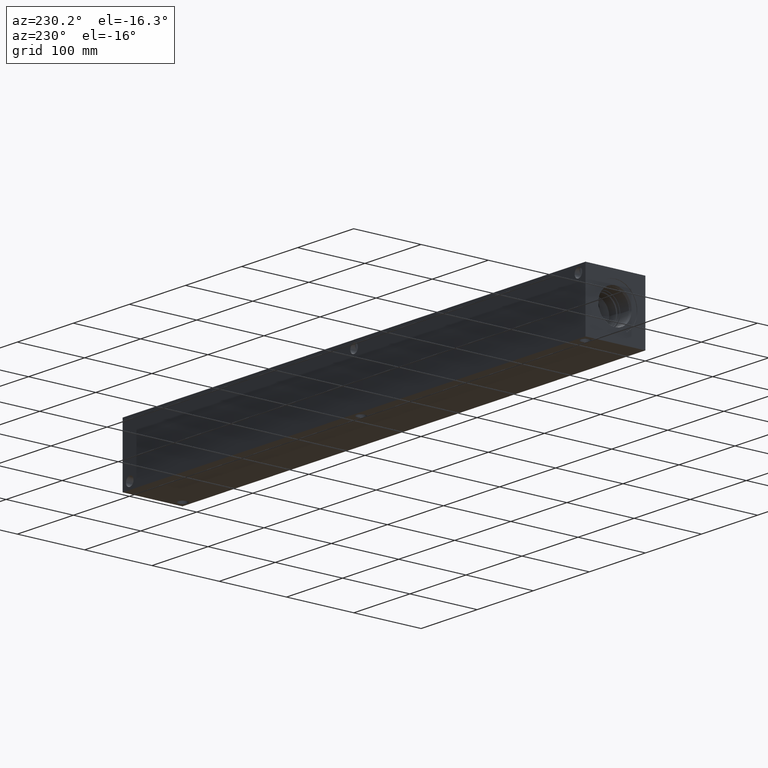
[diagram: clean part render]
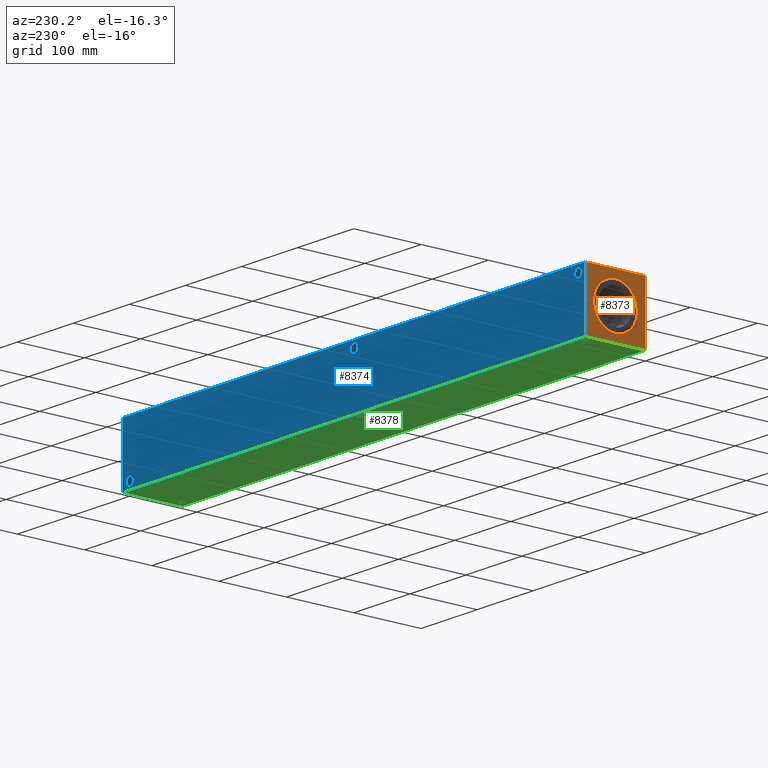
[diagram: same view with three faces highlighted in distinct colors, each labeled with its STEP entity id]
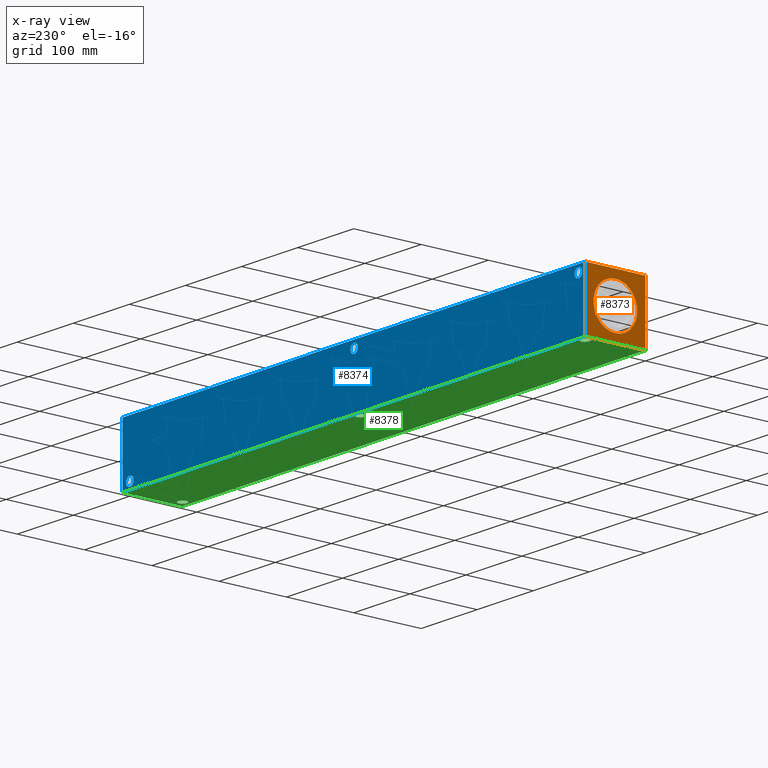
[diagram: x-ray of the same camera — body ghosted, the three highlighted faces saturated]
A machine part, auxiliary view with three faces highlighted in distinct colors.
The next image is the same camera in x-ray (body ghosted, the three faces saturated) — at least one of them is partly hidden behind the body in this view.
Their STEP definitions:

[orange] entity #8373 — the highlighted planar face has unit normal (-1, 0, 0).
#314=CIRCLE('',#8903,32.5628);
#315=CIRCLE('',#8904,32.5628);
#385=FACE_BOUND('',#1676,.T.);
#1178=FACE_OUTER_BOUND('',#1675,.T.);
#1675=EDGE_LOOP('',(#7385,#7386,#7387,#7388));
#1676=EDGE_LOOP('',(#7389,#7390));
#1927=LINE('',#12992,#2649);
#2406=LINE('',#14675,#3128);
#2407=LINE('',#14676,#3129);
#2408=LINE('',#14677,#3130);
#2649=VECTOR('',#9266,10.);
#3128=VECTOR('',#10689,10.);
#3129=VECTOR('',#10690,10.);
#3130=VECTOR('',#10691,10.);
#3432=VERTEX_POINT('',#12985);
#3435=VERTEX_POINT('',#12990);
#3906=VERTEX_POINT('',#14644);
#3907=VERTEX_POINT('',#14645);
#3916=VERTEX_POINT('',#14673);
#3917=VERTEX_POINT('',#14674);
#4367=EDGE_CURVE('',#3435,#3432,#1927,.T.);
#5066=EDGE_CURVE('',#3906,#3907,#314,.T.);
#5067=EDGE_CURVE('',#3907,#3906,#315,.T.);
#5080=EDGE_CURVE('',#3916,#3917,#2406,.T.);
#5081=EDGE_CURVE('',#3917,#3432,#2407,.T.);
#5082=EDGE_CURVE('',#3916,#3435,#2408,.T.);
#7385=ORIENTED_EDGE('',*,*,#5080,.T.);
#7386=ORIENTED_EDGE('',*,*,#5081,.T.);
#7387=ORIENTED_EDGE('',*,*,#4367,.F.);
#7388=ORIENTED_EDGE('',*,*,#5082,.F.);
#7389=ORIENTED_EDGE('',*,*,#5066,.T.);
#7390=ORIENTED_EDGE('',*,*,#5067,.T.);
#7638=PLANE('',#8917);
#8373=ADVANCED_FACE('',(#1178,#385),#7638,.T.);
#8903=AXIS2_PLACEMENT_3D('',#14646,#10655,#10656);
#8904=AXIS2_PLACEMENT_3D('',#14647,#10657,#10658);
#8917=AXIS2_PLACEMENT_3D('',#14672,#10687,#10688);
#9266=DIRECTION('',(0.,-1.,0.));
#10655=DIRECTION('center_axis',(1.,0.,0.));
#10656=DIRECTION('ref_axis',(0.,0.,1.));
#10657=DIRECTION('center_axis',(1.,0.,0.));
#10658=DIRECTION('ref_axis',(0.,0.,1.));
#10687=DIRECTION('center_axis',(-1.,0.,0.));
#10688=DIRECTION('ref_axis',(0.,-1.,0.));
#10689=DIRECTION('',(0.,-1.,0.));
#10690=DIRECTION('',(0.,0.,1.));
#10691=DIRECTION('',(0.,0.,1.));
#12985=CARTESIAN_POINT('',(0.,0.,88.9));
#12990=CARTESIAN_POINT('',(0.,88.9,88.9));
#12992=CARTESIAN_POINT('',(0.,88.9,88.9));
#14644=CARTESIAN_POINT('',(0.,44.45,77.0128));
#14645=CARTESIAN_POINT('',(0.,44.45,11.8872));
#14646=CARTESIAN_POINT('Origin',(0.,44.45,44.45));
#14647=CARTESIAN_POINT('Origin',(0.,44.45,44.45));
#14672=CARTESIAN_POINT('Origin',(0.,88.9,0.));
#14673=CARTESIAN_POINT('',(0.,88.9,0.));
#14674=CARTESIAN_POINT('',(0.,0.,0.));
#14675=CARTESIAN_POINT('',(0.,88.9,0.));
#14676=CARTESIAN_POINT('',(0.,0.,0.));
#14677=CARTESIAN_POINT('',(0.,88.9,0.));

[blue] entity #8374 — the highlighted planar face has unit normal (0, 1, 0).
#152=CIRCLE('',#8617,6.7437);
#155=CIRCLE('',#8626,6.7437);
#158=CIRCLE('',#8635,6.7437);
#386=FACE_BOUND('',#1678,.T.);
#387=FACE_BOUND('',#1679,.T.);
#388=FACE_BOUND('',#1680,.T.);
#1179=FACE_OUTER_BOUND('',#1677,.T.);
#1677=EDGE_LOOP('',(#7391,#7392,#7393,#7394));
#1678=EDGE_LOOP('',(#7395));
#1679=EDGE_LOOP('',(#7396));
#1680=EDGE_LOOP('',(#7397));
#1926=LINE('',#12991,#2648);
#2408=LINE('',#14677,#3130);
#2409=LINE('',#14680,#3131);
#2410=LINE('',#14681,#3132);
#2648=VECTOR('',#9265,10.);
#3130=VECTOR('',#10691,10.);
#3131=VECTOR('',#10694,10.);
#3132=VECTOR('',#10695,10.);
#3434=VERTEX_POINT('',#12988);
#3435=VERTEX_POINT('',#12990);
#3724=VERTEX_POINT('',#13958);
#3729=VERTEX_POINT('',#13974);
#3734=VERTEX_POINT('',#13990);
#3916=VERTEX_POINT('',#14673);
#3918=VERTEX_POINT('',#14679);
#4366=EDGE_CURVE('',#3434,#3435,#1926,.T.);
#4791=EDGE_CURVE('',#3724,#3724,#152,.T.);
#4800=EDGE_CURVE('',#3729,#3729,#155,.T.);
#4809=EDGE_CURVE('',#3734,#3734,#158,.T.);
#5082=EDGE_CURVE('',#3916,#3435,#2408,.T.);
#5083=EDGE_CURVE('',#3918,#3916,#2409,.T.);
#5084=EDGE_CURVE('',#3918,#3434,#2410,.T.);
#7391=ORIENTED_EDGE('',*,*,#5083,.T.);
#7392=ORIENTED_EDGE('',*,*,#5082,.T.);
#7393=ORIENTED_EDGE('',*,*,#4366,.F.);
#7394=ORIENTED_EDGE('',*,*,#5084,.F.);
#7395=ORIENTED_EDGE('',*,*,#4791,.T.);
#7396=ORIENTED_EDGE('',*,*,#4800,.T.);
#7397=ORIENTED_EDGE('',*,*,#4809,.T.);
#7639=PLANE('',#8918);
#8374=ADVANCED_FACE('',(#1179,#386,#387,#388),#7639,.T.);
#8617=AXIS2_PLACEMENT_3D('',#13960,#9988,#9989);
#8626=AXIS2_PLACEMENT_3D('',#13976,#10008,#10009);
#8635=AXIS2_PLACEMENT_3D('',#13992,#10028,#10029);
#8918=AXIS2_PLACEMENT_3D('',#14678,#10692,#10693);
#9265=DIRECTION('',(-1.,0.,0.));
#9988=DIRECTION('center_axis',(0.,-1.,0.));
#9989=DIRECTION('ref_axis',(1.,0.,0.));
#10008=DIRECTION('center_axis',(0.,-1.,0.));
#10009=DIRECTION('ref_axis',(1.,0.,0.));
#10028=DIRECTION('center_axis',(0.,-1.,0.));
#10029=DIRECTION('ref_axis',(1.,0.,0.));
#10691=DIRECTION('',(0.,0.,1.));
#10692=DIRECTION('center_axis',(0.,1.,0.));
#10693=DIRECTION('ref_axis',(-1.,0.,0.));
#10694=DIRECTION('',(-1.,0.,0.));
#10695=DIRECTION('',(0.,0.,1.));
#12988=CARTESIAN_POINT('',(825.5,88.9,88.9));
#12990=CARTESIAN_POINT('',(0.,88.9,88.9));
#12991=CARTESIAN_POINT('',(825.5,88.9,88.9));
#13958=CARTESIAN_POINT('',(406.0063,88.9,78.5876));
#13960=CARTESIAN_POINT('Origin',(412.75,88.9,78.5876));
#13974=CARTESIAN_POINT('',(5.9563,88.9,78.5876));
#13976=CARTESIAN_POINT('Origin',(12.7,88.9,78.5876));
#13990=CARTESIAN_POINT('',(806.0563,88.9,10.3124));
#13992=CARTESIAN_POINT('Origin',(812.8,88.9,10.3124));
#14673=CARTESIAN_POINT('',(0.,88.9,0.));
#14677=CARTESIAN_POINT('',(0.,88.9,0.));
#14678=CARTESIAN_POINT('Origin',(825.5,88.9,0.));
#14679=CARTESIAN_POINT('',(825.5,88.9,0.));
#14680=CARTESIAN_POINT('',(825.5,88.9,0.));
#14681=CARTESIAN_POINT('',(825.5,88.9,0.));

[green] entity #8378 — the highlighted planar face has unit normal (0, 0, 1).
#159=CIRCLE('',#8640,6.7437);
#160=CIRCLE('',#8642,6.7437);
#161=CIRCLE('',#8644,6.7437);
#393=FACE_BOUND('',#1689,.T.);
#394=FACE_BOUND('',#1690,.T.);
#395=FACE_BOUND('',#1691,.T.);
#1183=FACE_OUTER_BOUND('',#1688,.T.);
#1688=EDGE_LOOP('',(#7417,#7418,#7419,#7420));
#1689=EDGE_LOOP('',(#7421));
#1690=EDGE_LOOP('',(#7422));
#1691=EDGE_LOOP('',(#7423));
#2406=LINE('',#14675,#3128);
#2409=LINE('',#14680,#3131);
#2411=LINE('',#14684,#3133);
#2413=LINE('',#14687,#3135);
#3128=VECTOR('',#10689,10.);
#3131=VECTOR('',#10694,10.);
#3133=VECTOR('',#10698,10.);
#3135=VECTOR('',#10702,10.);
#3735=VERTEX_POINT('',#14000);
#3736=VERTEX_POINT('',#14004);
#3737=VERTEX_POINT('',#14008);
#3916=VERTEX_POINT('',#14673);
#3917=VERTEX_POINT('',#14674);
#3918=VERTEX_POINT('',#14679);
#3919=VERTEX_POINT('',#14683);
#4814=EDGE_CURVE('',#3735,#3735,#159,.T.);
#4816=EDGE_CURVE('',#3736,#3736,#160,.T.);
#4818=EDGE_CURVE('',#3737,#3737,#161,.T.);
#5080=EDGE_CURVE('',#3916,#3917,#2406,.T.);
#5083=EDGE_CURVE('',#3918,#3916,#2409,.T.);
#5085=EDGE_CURVE('',#3919,#3918,#2411,.T.);
#5087=EDGE_CURVE('',#3917,#3919,#2413,.T.);
#7417=ORIENTED_EDGE('',*,*,#5087,.F.);
#7418=ORIENTED_EDGE('',*,*,#5080,.F.);
#7419=ORIENTED_EDGE('',*,*,#5083,.F.);
#7420=ORIENTED_EDGE('',*,*,#5085,.F.);
#7421=ORIENTED_EDGE('',*,*,#4814,.T.);
#7422=ORIENTED_EDGE('',*,*,#4816,.T.);
#7423=ORIENTED_EDGE('',*,*,#4818,.T.);
#7643=PLANE('',#8922);
#8378=ADVANCED_FACE('',(#1183,#393,#394,#395),#7643,.F.);
#8640=AXIS2_PLACEMENT_3D('',#14002,#10042,#10043);
#8642=AXIS2_PLACEMENT_3D('',#14006,#10047,#10048);
#8644=AXIS2_PLACEMENT_3D('',#14010,#10052,#10053);
#8922=AXIS2_PLACEMENT_3D('',#14689,#10705,#10706);
#10042=DIRECTION('center_axis',(0.,0.,1.));
#10043=DIRECTION('ref_axis',(1.,0.,0.));
#10047=DIRECTION('center_axis',(0.,0.,1.));
#10048=DIRECTION('ref_axis',(1.,0.,0.));
#10052=DIRECTION('center_axis',(0.,0.,1.));
#10053=DIRECTION('ref_axis',(1.,0.,0.));
#10689=DIRECTION('',(0.,-1.,0.));
#10694=DIRECTION('',(-1.,0.,0.));
#10698=DIRECTION('',(0.,1.,0.));
#10702=DIRECTION('',(1.,0.,0.));
#10705=DIRECTION('center_axis',(0.,0.,1.));
#10706=DIRECTION('ref_axis',(1.,0.,0.));
#14000=CARTESIAN_POINT('',(406.0063,78.5876,0.));
#14002=CARTESIAN_POINT('Origin',(412.75,78.5876,0.));
#14004=CARTESIAN_POINT('',(5.9563,78.5876,0.));
#14006=CARTESIAN_POINT('Origin',(12.7,78.5876,0.));
#14008=CARTESIAN_POINT('',(806.0563,10.3124,0.));
#14010=CARTESIAN_POINT('Origin',(812.8,10.3124,0.));
#14673=CARTESIAN_POINT('',(0.,88.9,0.));
#14674=CARTESIAN_POINT('',(0.,0.,0.));
#14675=CARTESIAN_POINT('',(0.,88.9,0.));
#14679=CARTESIAN_POINT('',(825.5,88.9,0.));
#14680=CARTESIAN_POINT('',(825.5,88.9,0.));
#14683=CARTESIAN_POINT('',(825.5,0.,0.));
#14684=CARTESIAN_POINT('',(825.5,0.,0.));
#14687=CARTESIAN_POINT('',(0.,0.,0.));
#14689=CARTESIAN_POINT('Origin',(412.75,44.45,0.));